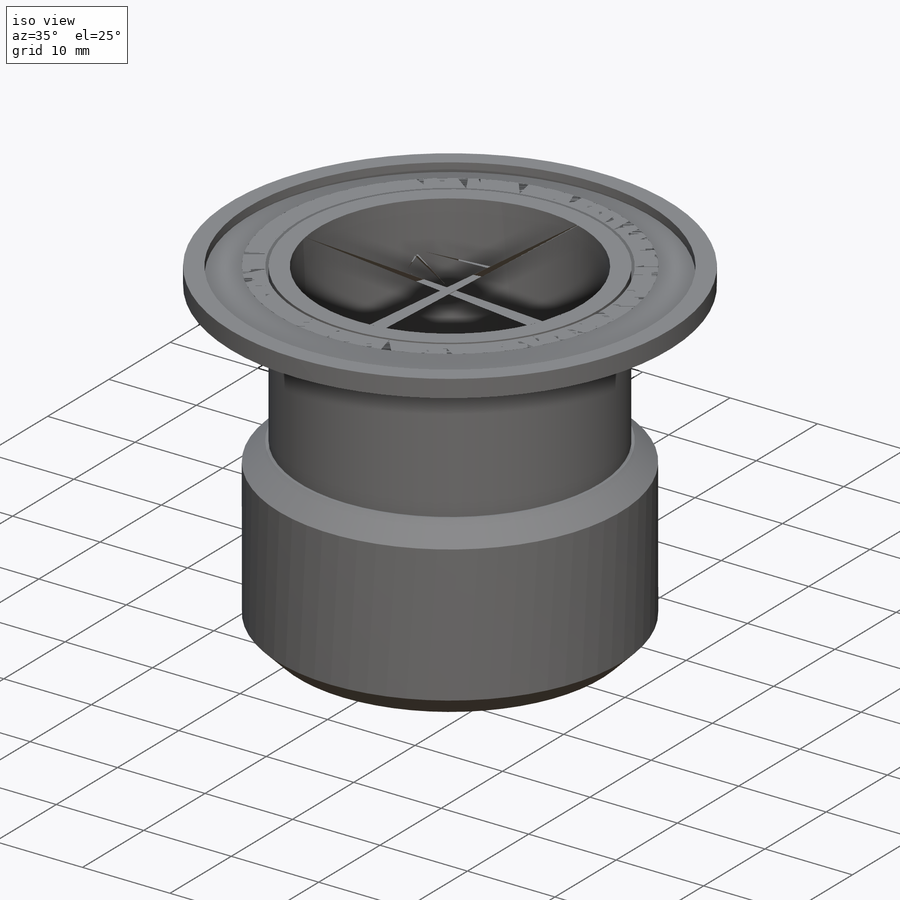
[diagram: iso view]
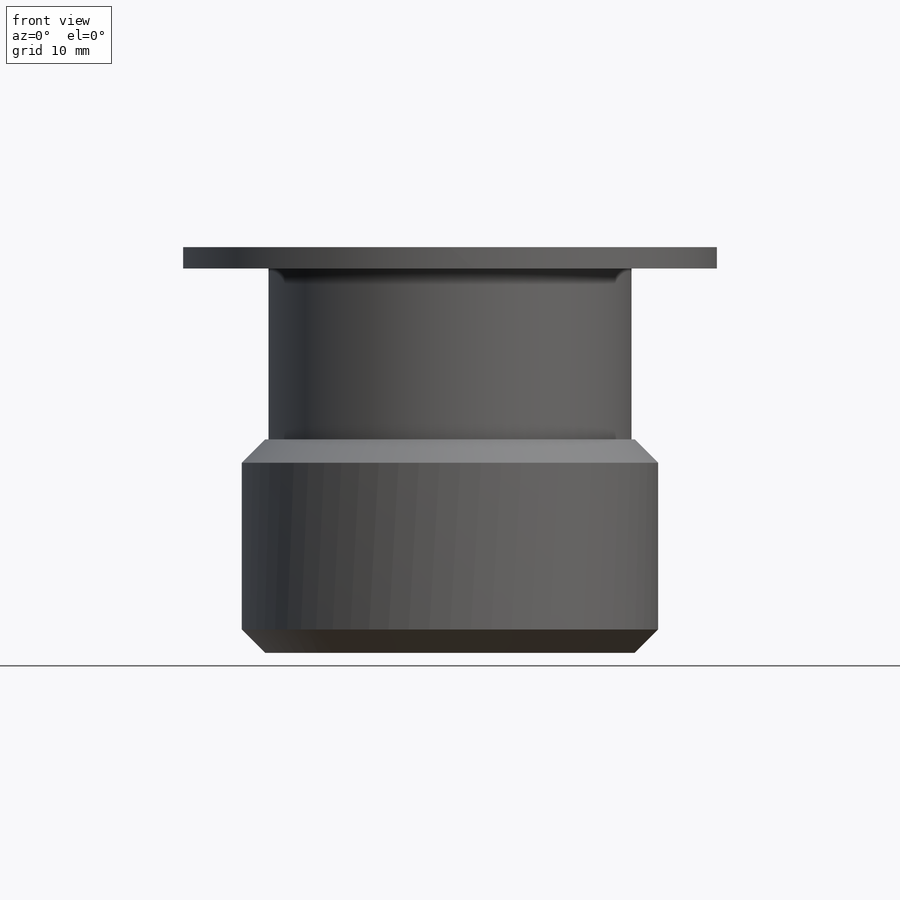
[diagram: front view]
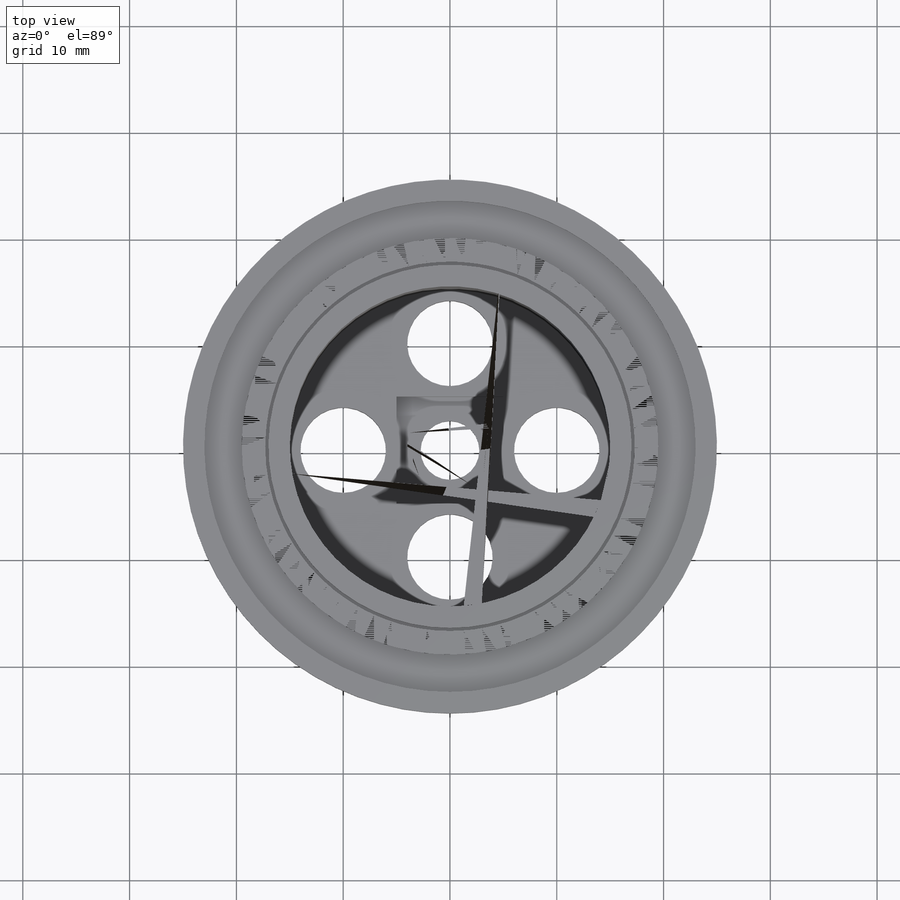
[diagram: top view]
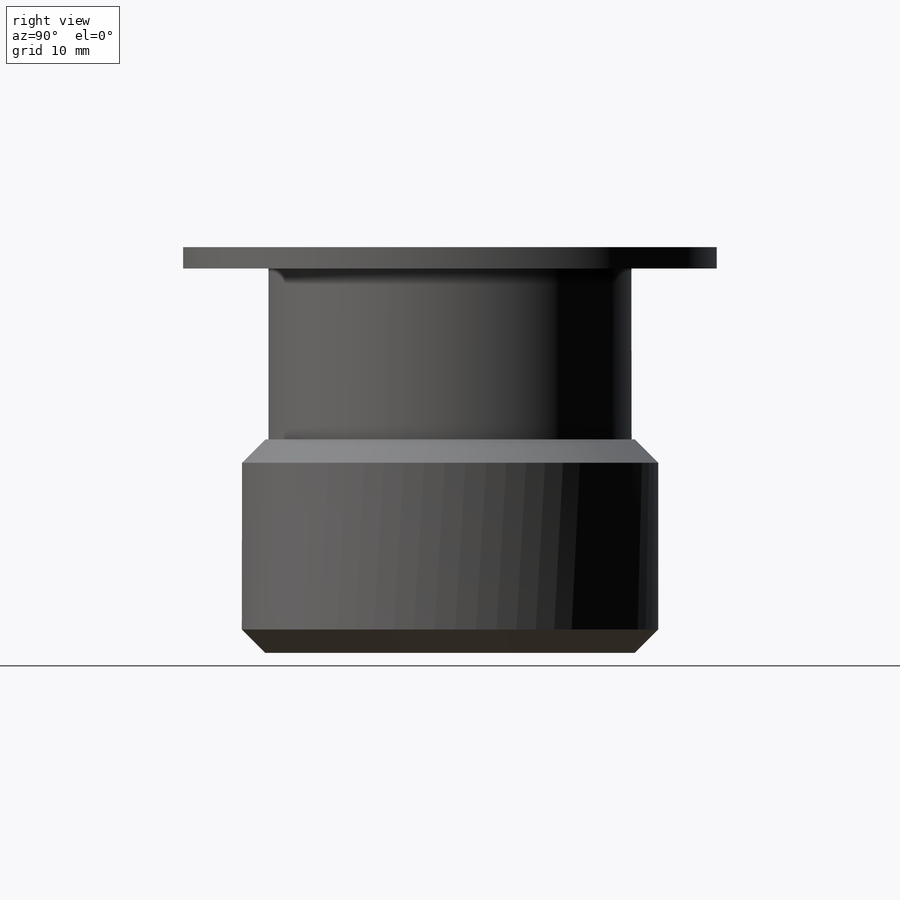
[diagram: right view]
SOLIDWORKS PART (.sldprt)
format: sldprt  version: not decoded by parser v0  size: 381,440 bytes
history: native  units: mm
features: sketch x8, cut_extrude x4, plane x3, extrude x3, material x1, revolve x1, thread x1, chamfer x1 (+9 scaffold rows collapsed)
feature tree (31):
  scaffold x9  (default folders/planes/origin — collapsed)
  material  "Сталь"
  plane  "Спереди"
  plane  "Сверху"
  plane  "Справа"
  sketch  "Эскиз2"  dims[c1.D1=15.0mm c1.D2=30.0mm c1.D3=2.5mm c1.D4=2.5mm c2.D2=30.0mm c2.D3=20.0mm c2.D1=30.0mm c3.D2=50.0mm c3.D4=2.0mm]
  revolve  "Повернуть1"  Angle=360deg
  sketch  "Эскиз3"  dims[D1=2.0mm D2=2.0mm]
  cut_extrude  "Вырез-Вытянуть1"  Depth=1mm
  sketch  "Эскиз4"  dims[D1=10.0mm]
  cut_extrude  "Вырез-Вытянуть2"  Depth=1.5mm
  sketch  "Эскиз5"  dims[D1=8.0mm D2=20.0mm D3=4.0]
  cut_extrude  "Вырез-Вытянуть3"  [1 undecoded]
  sketch  "Эскиз9"  dims[D1=0.0mm]
  extrude  "Бобышка-Вытянуть1"  Depth=1mm
  sketch  "Эскиз10"  dims[D1=0.0mm D2=2.0mm]
  extrude  "Бобышка-Вытянуть2"  Depth=15mm
  sketch  "Эскиз11"  dims[D1=5.5mm]
  cut_extrude  "Вырез-Вытянуть4"  [1 undecoded]
  sketch  "Эскиз12"  dims[D1=39.0mm]
  extrude  "Бобышка-Вытянуть3"  [1 undecoded]
  thread  "Условное изображение резьбы1"  Diameter=34.61mm  [1 undecoded]
  chamfer  "Фаска1"  Distance=2.195mm Angle=45deg
decode coverage: 15 of 18 modeling features carry decoded parameters
note: 4 parameter values undecoded
summary: no parameter record found for 3 features
note: suppression state not decoded; provenance and decode notes live in map.json
